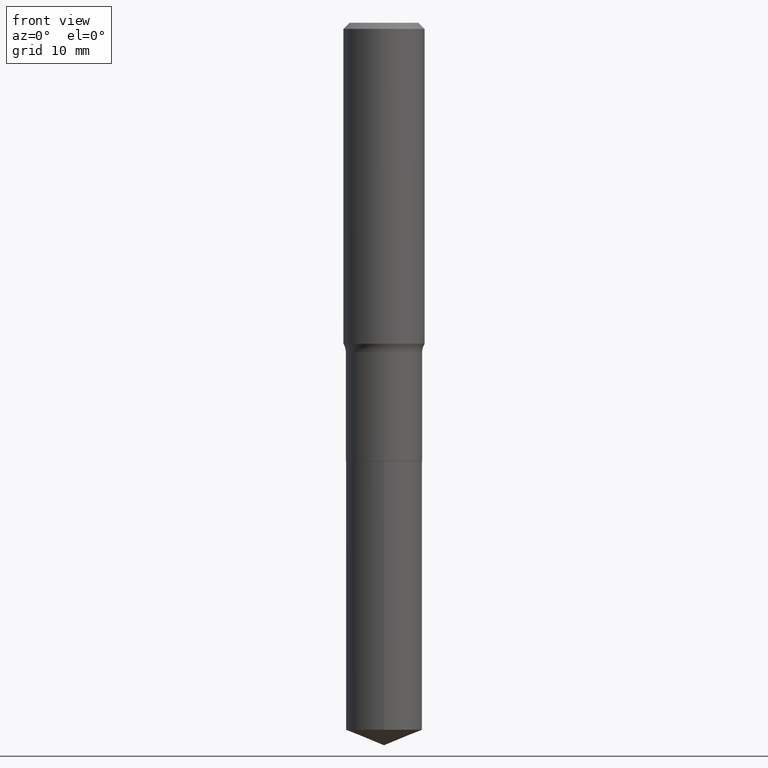
[diagram: clean part render]
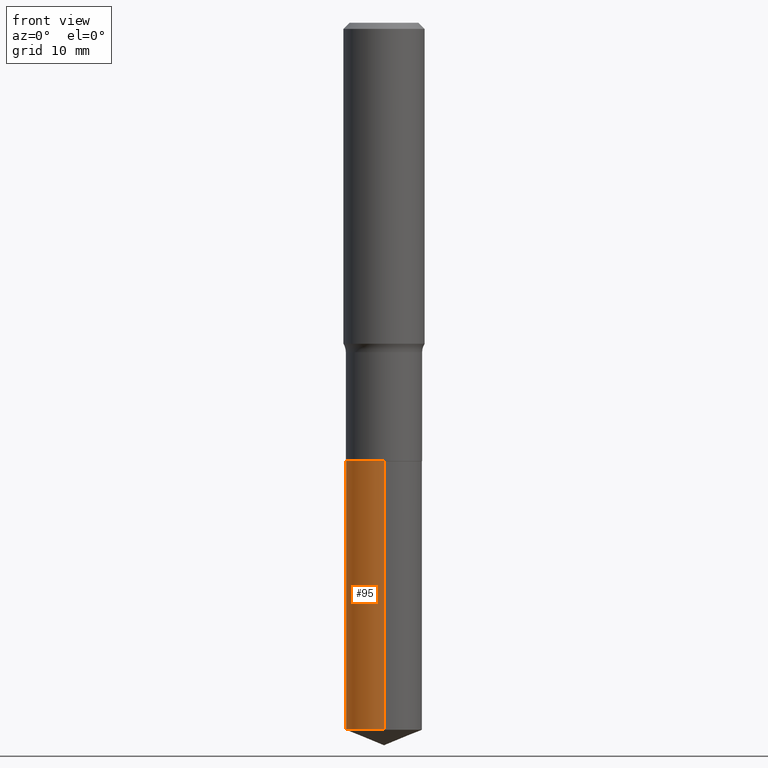
[diagram: same view with one face highlighted and labeled with its STEP entity id]
A machine part, front view. The second image highlights one B-rep face of the part: STEP entity #95.
In plain terms, the highlighted cylindrical surface (partial cylindrical patch) has radius 4.7003 mm, axis along (-0, 0, 1).
Its self-contained STEP definition (entity closure, byte-faithful):
#8 = CARTESIAN_POINT ( 'NONE',  ( 5.198822135068982087E-29, -7.422540178246643119E-15, -2.125899999999999679 ) ) ;
#13 = CARTESIAN_POINT ( 'NONE',  ( 8.385700175569454907E-29, -1.197296455644387141E-14, -3.429134946909204729 ) ) ;
#15 = ORIENTED_EDGE ( 'NONE', *, *, #172, .T. ) ;
#37 = EDGE_CURVE ( 'NONE', #176, #419, #328, .T. ) ;
#47 = VERTEX_POINT ( 'NONE', #167 ) ;
#50 = ORIENTED_EDGE ( 'NONE', *, *, #239, .F. ) ;
#63 = DIRECTION ( 'NONE',  ( -6.982962677686265133E-15, -1.000000000000000000, 2.952551195530141356E-15 ) ) ;
#65 = LINE ( 'NONE', #223, #289 ) ;
#95 = ADVANCED_FACE ( 'NONE', ( #205 ), #358, .T. ) ;
#106 = DIRECTION ( 'NONE',  ( -2.445359563184350382E-29, 3.491637781037997062E-15, 1.000000000000000000 ) ) ;
#109 = AXIS2_PLACEMENT_3D ( 'NONE', #188, #106, #340 ) ;
#133 = CARTESIAN_POINT ( 'NONE',  ( -1.292197243505759076E-15, -0.1850500000000119827, -3.429134946909204285 ) ) ;
#145 = LINE ( 'NONE', #298, #242 ) ;
#150 = CARTESIAN_POINT ( 'NONE',  ( -1.292197243505791420E-15, -0.1850500000000074030, -2.125899999999999235 ) ) ;
#153 = AXIS2_PLACEMENT_3D ( 'NONE', #8, #253, #63 ) ;
#167 = CARTESIAN_POINT ( 'NONE',  ( 1.314859332524149156E-15, 0.1850499999999925815, -2.125900000000000567 ) ) ;
#172 = EDGE_CURVE ( 'NONE', #419, #350, #65, .T. ) ;
#176 = VERTEX_POINT ( 'NONE', #294 ) ;
#181 = DIRECTION ( 'NONE',  ( -2.445359563184350382E-29, 3.491637781037997457E-15, 1.000000000000000000 ) ) ;
#188 = CARTESIAN_POINT ( 'NONE',  ( 5.198822135068982087E-29, -7.422540178246643119E-15, -2.125899999999999679 ) ) ;
#202 = DIRECTION ( 'NONE',  ( -6.982962677686265133E-15, -1.000000000000000000, 2.952551195530141356E-15 ) ) ;
#205 = FACE_OUTER_BOUND ( 'NONE', #342, .T. ) ;
#222 = EDGE_CURVE ( 'NONE', #47, #350, #425, .T. ) ;
#223 = CARTESIAN_POINT ( 'NONE',  ( -1.292197243505791420E-15, -0.1850500000000074030, -2.125899999999999235 ) ) ;
#239 = EDGE_CURVE ( 'NONE', #176, #47, #145, .T. ) ;
#242 = VECTOR ( 'NONE', #437, 39.37007874015748143 ) ;
#253 = DIRECTION ( 'NONE',  ( -2.445359563184350382E-29, 3.491637781037997062E-15, 1.000000000000000000 ) ) ;
#289 = VECTOR ( 'NONE', #181, 39.37007874015748143 ) ;
#294 = CARTESIAN_POINT ( 'NONE',  ( 1.314859332524148958E-15, 0.1850499999999879741, -3.429134946909205173 ) ) ;
#298 = CARTESIAN_POINT ( 'NONE',  ( 1.314859332524117009E-15, 0.1850499999999925815, -2.125900000000000567 ) ) ;
#325 = DIRECTION ( 'NONE',  ( -2.445359563184350382E-29, 3.491637781037997062E-15, 1.000000000000000000 ) ) ;
#328 = CIRCLE ( 'NONE', #388, 0.1850499999999999923 ) ;
#340 = DIRECTION ( 'NONE',  ( -6.982962677686265133E-15, -1.000000000000000000, 2.952551195530141356E-15 ) ) ;
#342 = EDGE_LOOP ( 'NONE', ( #50, #391, #15, #362 ) ) ;
#350 = VERTEX_POINT ( 'NONE', #150 ) ;
#358 = CYLINDRICAL_SURFACE ( 'NONE', #153, 0.1850499999999999923 ) ;
#362 = ORIENTED_EDGE ( 'NONE', *, *, #222, .F. ) ;
#388 = AXIS2_PLACEMENT_3D ( 'NONE', #13, #325, #202 ) ;
#391 = ORIENTED_EDGE ( 'NONE', *, *, #37, .T. ) ;
#419 = VERTEX_POINT ( 'NONE', #133 ) ;
#425 = CIRCLE ( 'NONE', #109, 0.1850499999999999923 ) ;
#437 = DIRECTION ( 'NONE',  ( -2.445359563184350382E-29, 3.491637781037997457E-15, 1.000000000000000000 ) ) ;